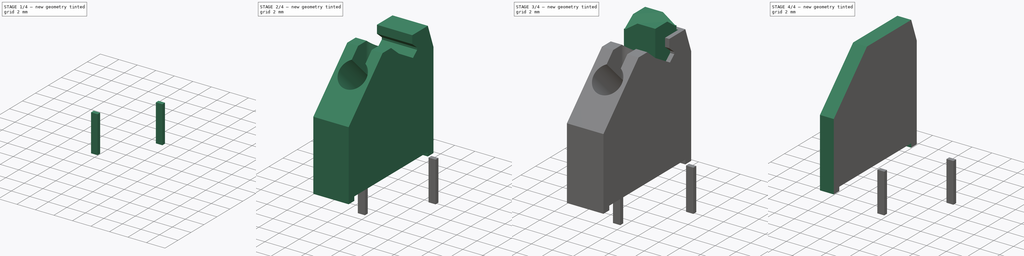
[diagram: build sequence overview — one tinted view per stage of 4, left to right]
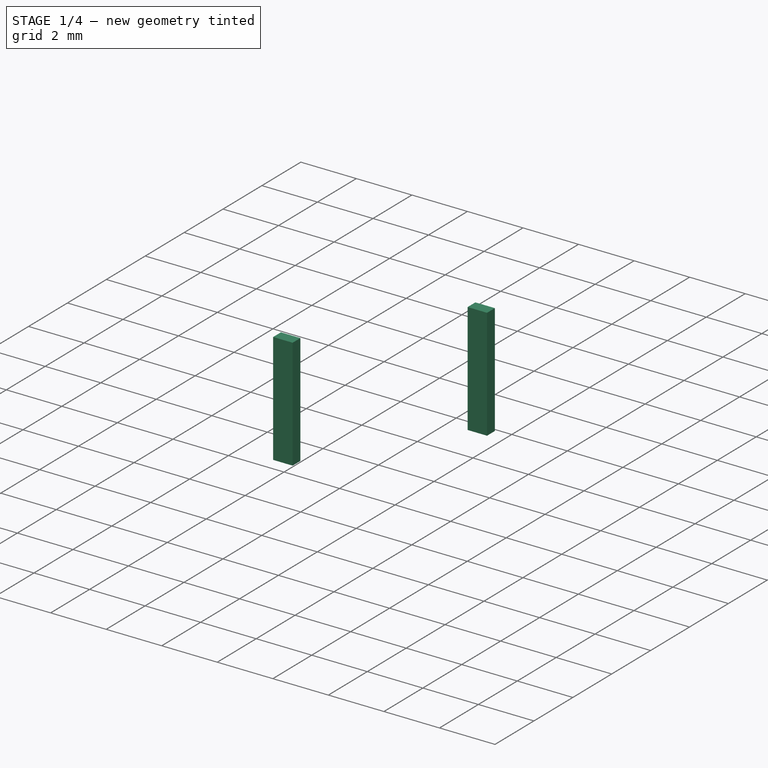
[diagram: stage 1 of 4 — iso view after this stage's code; geometry added in this stage tinted green]
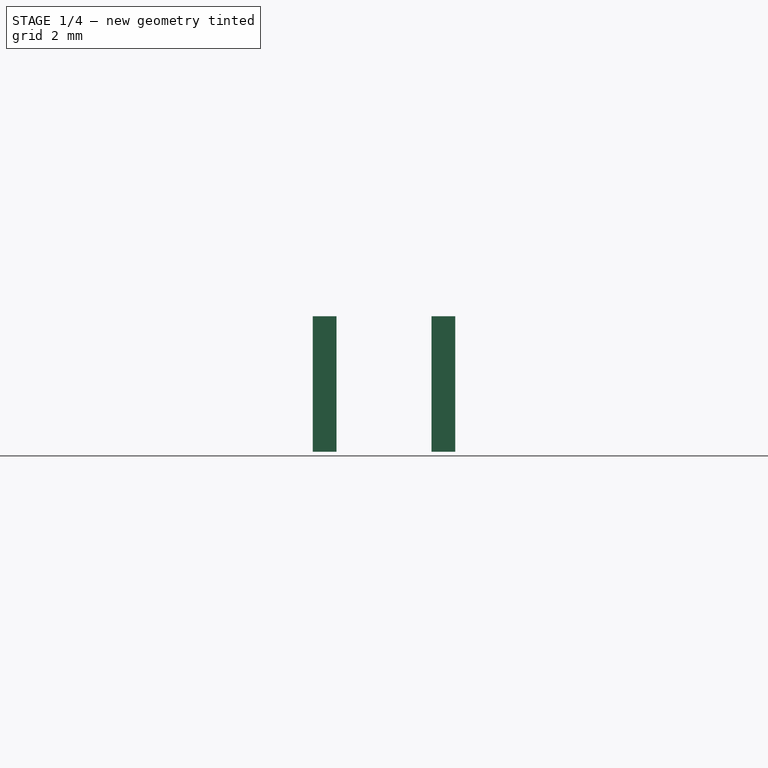
[diagram: stage 1 of 4 — front view after this stage's code; geometry added in this stage tinted green]
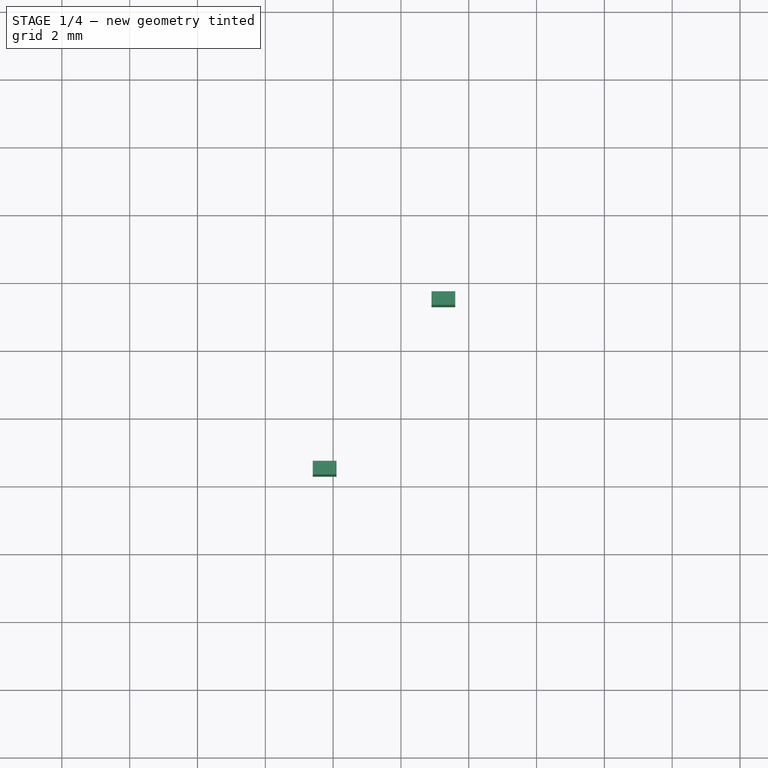
[diagram: stage 1 of 4 — top view after this stage's code; geometry added in this stage tinted green]
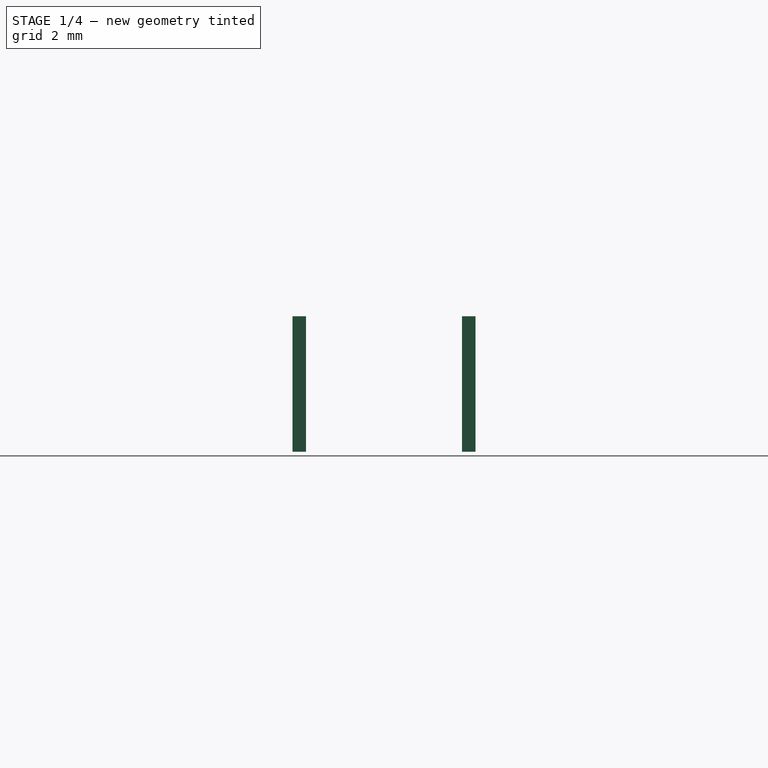
[diagram: stage 1 of 4 — right view after this stage's code; geometry added in this stage tinted green]
FCSTD DOCUMENT  (FreeCAD 1.0R39109 (Git))
Label: HIWA 250-21-2G
License: All rights reserved
LicenseURL: http://en.wikipedia.org/wiki/All_rights_reserved
objects: Sketcher::SketchObject×10, PartDesign::Pad×5, PartDesign::Pocket×4, PartDesign::Body×3, PartDesign::SubShapeBinder×1, Spreadsheet::Sheet×1, PartDesign::LinearPattern×1
note: 53 computed .brp shape members not serialized (recipe doc carries the construction recipe); baked Part::Feature solids carry a one-line shape summary decoded from their .brp

FEATURE [PartDesign::Body] Body  label="main_part"
  AllowCompound = false
  Group = -> [Sketch,Pad,Sketch001,Pocket,Sketch002,Pocket001,Sketch003,Pocket002,Sketch004,Pad001,Sketch005,Sketch006,Pocket003,LinearPattern]
  Origin = -> Origin
  Tip = -> LinearPattern
FEATURE [Sketcher::SketchObject] Sketch008
  ArcFitTolerance = 1e-06
  AttachmentSupport = -> [XY_Plane002]
  FullyConstrained = true
  MakeInternals = false
  MapMode = 5
  expr: Constraints[12] = 3.5 / 2
  sketch-geometry (5):
    g0: LineSegment StartX=1.4 StartY=4.3 StartZ=0 EndX=2.1 EndY=4.3 EndZ=0
    g1: LineSegment StartX=2.1 StartY=4.3 StartZ=0 EndX=2.1 EndY=4.7 EndZ=0
    g2: LineSegment StartX=2.1 StartY=4.7 StartZ=0 EndX=1.4 EndY=4.7 EndZ=0
    g3: LineSegment StartX=1.4 StartY=4.7 StartZ=0 EndX=1.4 EndY=4.3 EndZ=0
    g4: GeomPoint X=1.75 Y=4.3 Z=0
  constraints (13):
    c: Coincident(g0,g1)
    c: Coincident(g1,g2)
    c: Coincident(g2,g3)
    c: Coincident(g3,g0)
    c: Horizontal(g0)
    c: Horizontal(g2)
    c: Vertical(g1)
    c: Vertical(g3)
    c: DistanceX(g0,g0) = 0.7
    c: DistanceY(g1,g1) = 0.4
    c: DistanceY(g-1,g0) = 4.3
    c: Symmetric(g0,g0,g4)
    c: DistanceX(g-1,g4) = 1.75
FEATURE [Sketcher::SketchObject] Sketch009
  ArcFitTolerance = 1e-06
  AttachmentSupport = -> [XY_Plane002]
  ExternalGeometry = -> [Sketch008]
  FullyConstrained = true
  MakeInternals = false
  MapMode = 5
  expr: Constraints[11] = 3.5 + 3.5 / 2
  sketch-geometry (5):
    g0: LineSegment StartX=4.9 StartY=9.7 StartZ=0 EndX=5.6 EndY=9.7 EndZ=0
    g1: LineSegment StartX=5.6 StartY=9.7 StartZ=0 EndX=5.6 EndY=9.3 EndZ=0
    g2: LineSegment StartX=5.6 StartY=9.3 StartZ=0 EndX=4.9 EndY=9.3 EndZ=0
    g3: LineSegment StartX=4.9 StartY=9.3 StartZ=0 EndX=4.9 EndY=9.7 EndZ=0
    g4: GeomPoint X=5.25 Y=9.3 Z=0
  constraints (13):
    c: Coincident(g0,g1)
    c: Coincident(g1,g2)
    c: Coincident(g2,g3)
    c: Coincident(g3,g0)
    c: Horizontal(g0)
    c: Horizontal(g2)
    c: Vertical(g1)
    c: Vertical(g3)
    c: Distance(g1,g3) = 0.7
    c: Distance(g0,g2) = 0.4
    c: Symmetric(g2,g2,g4)
    c: DistanceX(g-1,g4) = 5.25
    c: DistanceY(g-3,g1) = 5
FEATURE [PartDesign::Pad] Pad003
  Direction = (0,0,1)
  Length = 1
  Length2 = 3
  Profile = -> Sketch008
  ReferenceAxis = -> Sketch008 [N_Axis]
  Refine = true
  Suppressed = false
  Type = 4
FEATURE [PartDesign::Pad] Pad004
  BaseFeature = -> Pad003
  Direction = (0,0,1)
  Length = 1
  Length2 = 3
  Profile = -> Sketch009
  ReferenceAxis = -> Sketch009 [N_Axis]
  Refine = true
  Suppressed = false
  Type = 4
FEATURE [PartDesign::Body] Body002  label="pins"
  AllowCompound = true
  Group = -> [Sketch008,Sketch009,Pad003,Pad004]
  Origin = -> Origin002
  Tip = -> Pad004
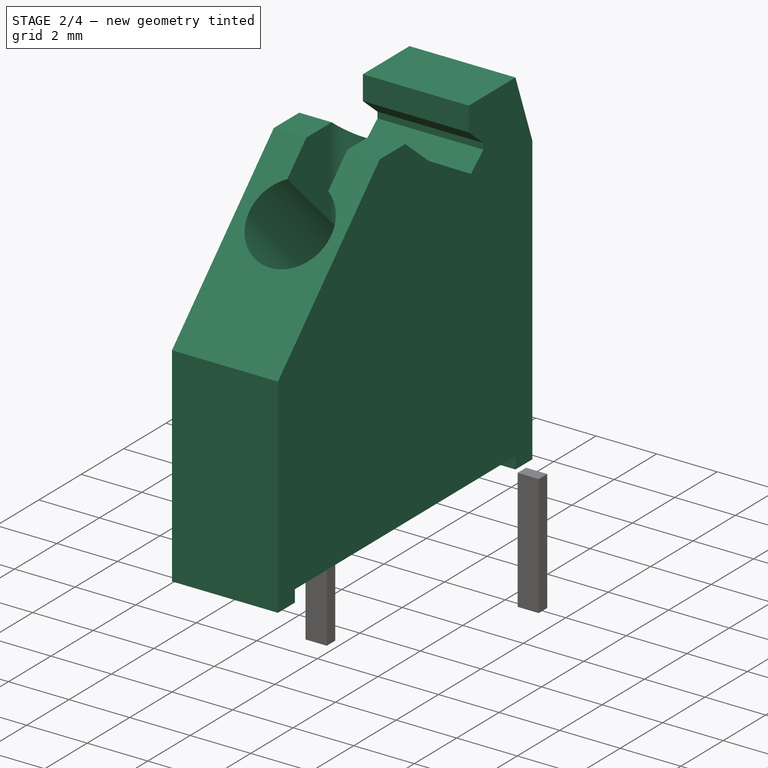
[diagram: stage 2 of 4 — iso view after this stage's code; geometry added in this stage tinted green]
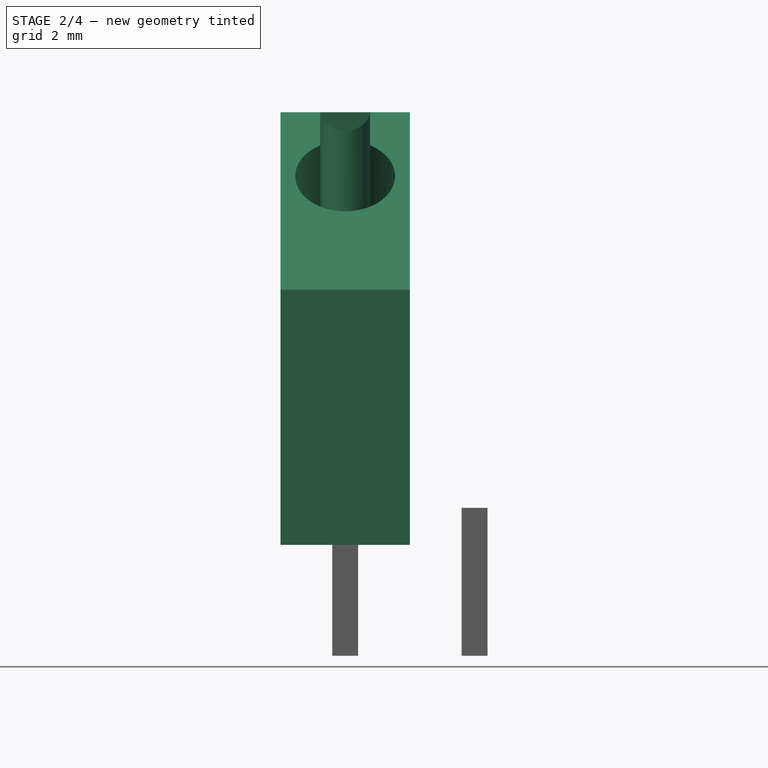
[diagram: stage 2 of 4 — front view after this stage's code; geometry added in this stage tinted green]
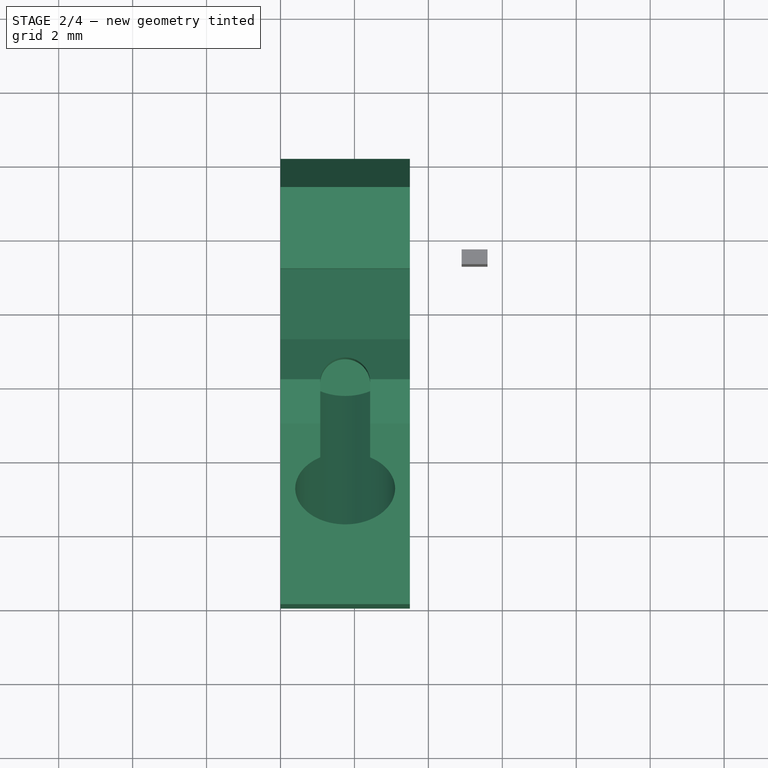
[diagram: stage 2 of 4 — top view after this stage's code; geometry added in this stage tinted green]
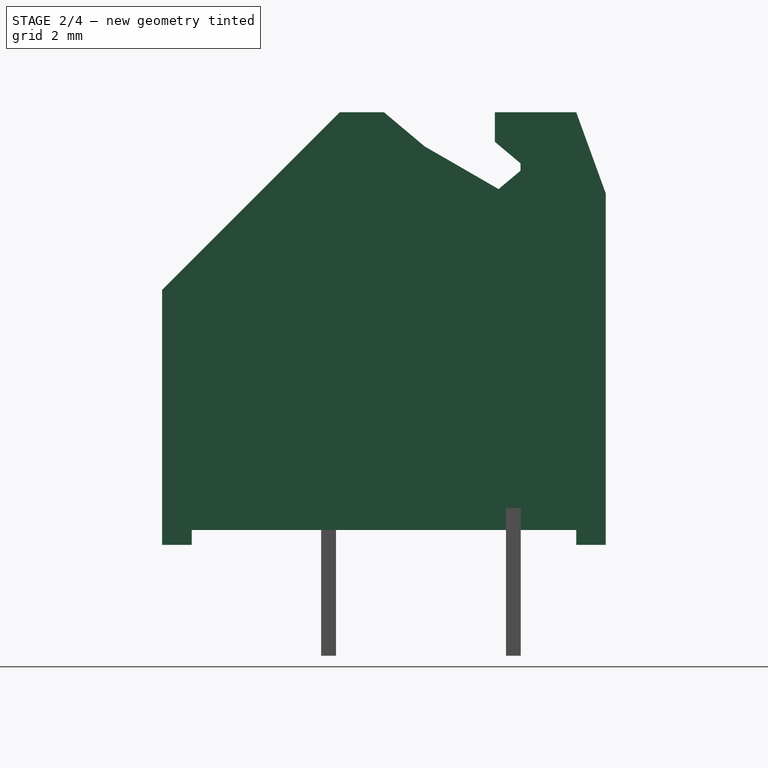
[diagram: stage 2 of 4 — right view after this stage's code; geometry added in this stage tinted green]
FEATURE [Sketcher::SketchObject] Sketch
  ArcFitTolerance = 1e-06
  AttachmentSupport = -> [YZ_Plane]
  FullyConstrained = true
  MakeInternals = false
  MapMode = 5
  Placement = pos=(0,0,0) rot=(0.57735,0.57735,0.57735;2.0944rad)
  sketch-geometry (21):
    g0: LineSegment [constr] StartX=0 StartY=0 StartZ=0 EndX=12 EndY=0 EndZ=0
    g1: LineSegment [constr] StartX=0 StartY=0 StartZ=0 EndX=0 EndY=13.1 EndZ=0
    g2: LineSegment [constr] StartX=0 StartY=13.1 StartZ=0 EndX=12 EndY=13.1 EndZ=0
    g3: LineSegment [constr] StartX=12 StartY=13.1 StartZ=0 EndX=12 EndY=0 EndZ=0
    g4: LineSegment StartX=0 StartY=0 StartZ=0 EndX=0.8 EndY=0 EndZ=0
    g5: LineSegment StartX=12 StartY=0 StartZ=0 EndX=11.2 EndY=0 EndZ=0
    g6: LineSegment StartX=0.8 StartY=0 StartZ=0 EndX=0.8 EndY=0.4 EndZ=0
    g7: LineSegment StartX=0.8 StartY=0.4 StartZ=0 EndX=11.2 EndY=0.4 EndZ=0
    g8: LineSegment StartX=11.2 StartY=0 StartZ=0 EndX=11.2 EndY=0.4 EndZ=0
    g9: LineSegment StartX=0 StartY=0 StartZ=0 EndX=0 EndY=6.9 EndZ=0
    g10: LineSegment StartX=0 StartY=6.9 StartZ=0 EndX=4.8 EndY=11.7 EndZ=0
    g11: LineSegment StartX=4.8 StartY=11.7 StartZ=0 EndX=6 EndY=11.7 EndZ=0
    g12: LineSegment StartX=9 StartY=11.7 StartZ=0 EndX=11.2 EndY=11.7 EndZ=0
    g13: LineSegment StartX=12 StartY=0 StartZ=0 EndX=12 EndY=9.5 EndZ=0
    g14: LineSegment StartX=11.2 StartY=11.7 StartZ=0 EndX=12 EndY=9.5 EndZ=0
    g15: LineSegment StartX=9 StartY=11.7 StartZ=0 EndX=9 EndY=10.9 EndZ=0
    g16: LineSegment StartX=9 StartY=10.9 StartZ=0 EndX=9.69218 EndY=10.3192 EndZ=0
    g17: LineSegment StartX=9.69218 StartY=10.3192 StartZ=0 EndX=9.69218 EndY=10.1192 EndZ=0
    g18: LineSegment StartX=9.69218 StartY=10.1192 StartZ=0 EndX=9.1 EndY=9.62229 EndZ=0
    g19: LineSegment StartX=6 StartY=11.7 StartZ=0 EndX=7.1 EndY=10.777 EndZ=0
    g20: LineSegment StartX=7.1 StartY=10.777 StartZ=0 EndX=9.1 EndY=9.62229 EndZ=0
  constraints (60):
    c: Distance(g0) = 12
    c: Horizontal(g0)
    c: Coincident(g1,g0)
    c: Vertical(g1)
    c: DistanceY(g1,g1) = 13.1
    c: Coincident(g2,g1)
    c: Horizontal(g2)
    c: Coincident(g3,g2)
    c: Coincident(g3,g0)
    c: Vertical(g3)
    c: Coincident(g0,g-1)
    c: Distance(g4) = 0.8
    c: Coincident(g4,g0)
    c: PointOnObject(g4,g0)
    c: Distance(g5) = 0.8
    c: Coincident(g5,g0)
    c: PointOnObject(g5,g0)
    c: Coincident(g6,g4)
    c: Vertical(g6)
    c: DistanceY(g6,g6) = 0.4
    c: Coincident(g7,g6)
    c: Horizontal(g7)
    c: Coincident(g8,g5)
    c: Coincident(g8,g7)
    c: Vertical(g8)
    c: Coincident(g9,g0)
    c: PointOnObject(g9,g1)
    c: Coincident(g10,g9)
    c: Angle(g9,g10) = 2.35619
    c: DistanceY(g9,g9) = 6.9
    c: DistanceY(g10,g1) = 1.4
    c: Distance(g11) = 1.2
    c: Coincident(g11,g10)
    c: Horizontal(g11)
    c: Distance(g12) = 2.2
    c: Horizontal(g12)
    c: Coincident(g13,g0)
    c: PointOnObject(g13,g3)
    c: DistanceY(g13,g13) = 9.5
    c: Coincident(g14,g12)
    c: Coincident(g14,g13)
    c: Horizontal(g11,g12)
    c: DistanceX(g12,g2) = 0.8
    c: Distance(g15) = 0.8
    c: Coincident(g15,g12)
    c: Vertical(g15)
    c: Coincident(g16,g15)
    c: Coincident(g17,g16)
    c: Vertical(g17)
    c: Coincident(g18,g17)
    c: Angle(g16,g18) = 1.39626
    c: DistanceY(g17,g17) = 0.2
    c: Coincident(g19,g11)
    c: Coincident(g20,g19)
    c: Coincident(g20,g18)
    c: Angle(g11,g19) = 2.44346
    c: Angle(g20,g19) = 2.96706
    c: DistanceX(g11,g19) = 1.1
    c: DistanceX(g15,g18) = 0.1
    c: Angle(g16,g17) = 2.26893
FEATURE [PartDesign::Pad] Pad
  Direction = (1,0,0)
  Length = 3.5
  Length2 = 10
  Placement = pos=(0,0,0) rot=(1,1,1;2.0944rad)
  Profile = -> Sketch
  ReferenceAxis = -> Sketch [N_Axis]
  Refine = true
  Suppressed = false
  Type = 0
FEATURE [Sketcher::SketchObject] Sketch001
  ArcFitTolerance = 1e-06
  AttachmentSupport = -> [Pad]
  ExternalGeometry = -> [Pad]
  FullyConstrained = true
  MakeInternals = false
  MapMode = 5
  Placement = pos=(-1.1e-15,-3.45,3.45) rot=(0.357407,0.357407,-0.862856;1.71777rad)
  sketch-geometry (4):
    g0: Circle CenterX=-9.22904 CenterY=1.75 CenterZ=0 NormalX=0 NormalY=0 NormalZ=1 AngleXU=0 Radius=1.35
    g1: GeomPoint X=-11.6673 Y=1.75 Z=0
    g2: GeomPoint X=-9.22904 Y=3.1 Z=0
    g3: GeomPoint X=-7.87904 Y=1.75 Z=0
  constraints (8):
    c: Symmetric(g-3,g-3,g1)
    c: Horizontal(g0,g1)
    c: PointOnObject(g2,g0)
    c: Vertical(g0,g2)
    c: DistanceY(g2,g-4) = 0.4
    c: PointOnObject(g3,g0)
    c: Horizontal(g3,g0)
    c: DistanceX(g3,g-4) = 3
FEATURE [PartDesign::Pocket] Pocket
  BaseFeature = -> Pad
  Direction = (1e-16,0.707107,-0.707107)
  Length = 5
  Length2 = 5
  Placement = pos=(0,0,0) rot=(1,1,1;2.0944rad)
  Profile = -> Sketch001
  ReferenceAxis = -> Sketch001 [N_Axis]
  Refine = true
  Suppressed = false
  Type = 0
FEATURE [Sketcher::SketchObject] Sketch002
  ArcFitTolerance = 1e-06
  AttachmentSupport = -> [Pocket]
  ExternalGeometry = -> [Pocket]
  FullyConstrained = true
  MakeInternals = false
  MapMode = 5
  Placement = pos=(-5.2e-15,5.2e-15,11.7) rot=(0,0,-1;1.5708rad)
  sketch-geometry (5):
    g0: ArcOfCircle CenterX=-5.925 CenterY=1.75 CenterZ=0 NormalX=0 NormalY=0 NormalZ=1 AngleXU=0 Radius=0.675 StartAngle=1.5708 EndAngle=4.71239
    g1: ArcOfCircle CenterX=-3.725 CenterY=1.75 CenterZ=0 NormalX=0 NormalY=0 NormalZ=1 AngleXU=0 Radius=0.675 StartAngle=4.71239 EndAngle=7.85398
    g2: LineSegment StartX=-5.925 StartY=2.425 StartZ=0 EndX=-3.725 EndY=2.425 EndZ=0
    g3: LineSegment StartX=-5.925 StartY=1.075 StartZ=0 EndX=-3.725 EndY=1.075 EndZ=0
    g4: GeomPoint X=-6 Y=1.75 Z=0
  constraints (11):
    c: Tangent(g0,g2) = 1.5708
    c: Tangent(g0,g3) = -1.5708
    c: Tangent(g1,g2) = 1.5708
    c: Tangent(g1,g3) = -1.5708
    c: Equal(g0,g1)
    c: Horizontal(g3)
    c: DistanceY(g1,g1) = 1.35
    c: Distance(g0,g-5) = 5.4
    c: DistanceX(g0,g1) = 2.2
    c: Symmetric(g-3,g-3,g4)
    c: Horizontal(g0,g4)
FEATURE [PartDesign::Pocket] Pocket001
  BaseFeature = -> Pocket
  Direction = (0,0,-1)
  Length = 3.5
  Length2 = 5
  Placement = pos=(0,0,0) rot=(1,1,1;2.0944rad)
  Profile = -> Sketch002
  ReferenceAxis = -> Sketch002 [N_Axis]
  Refine = true
  Suppressed = false
  Type = 0
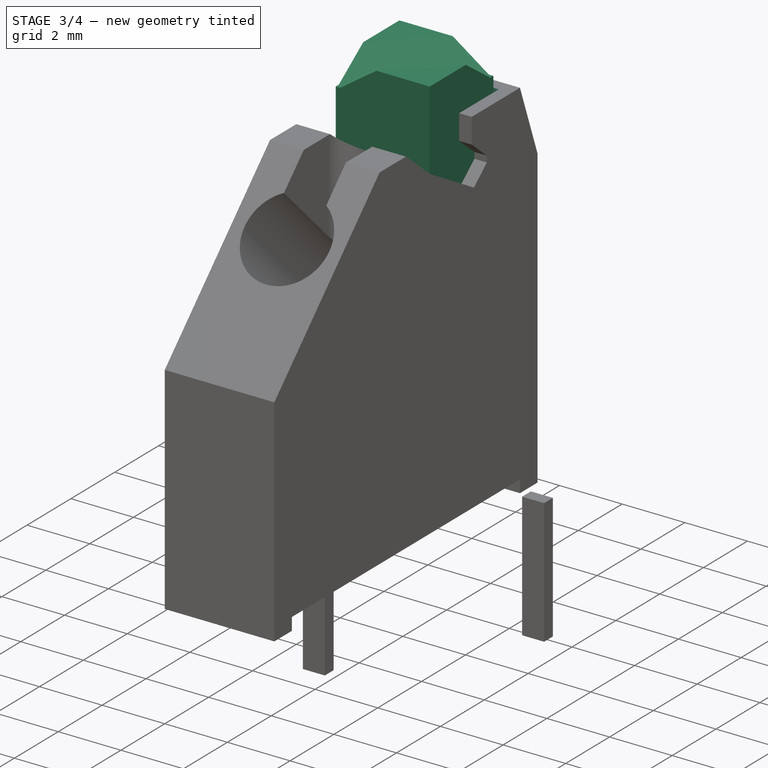
[diagram: stage 3 of 4 — iso view after this stage's code; geometry added in this stage tinted green]
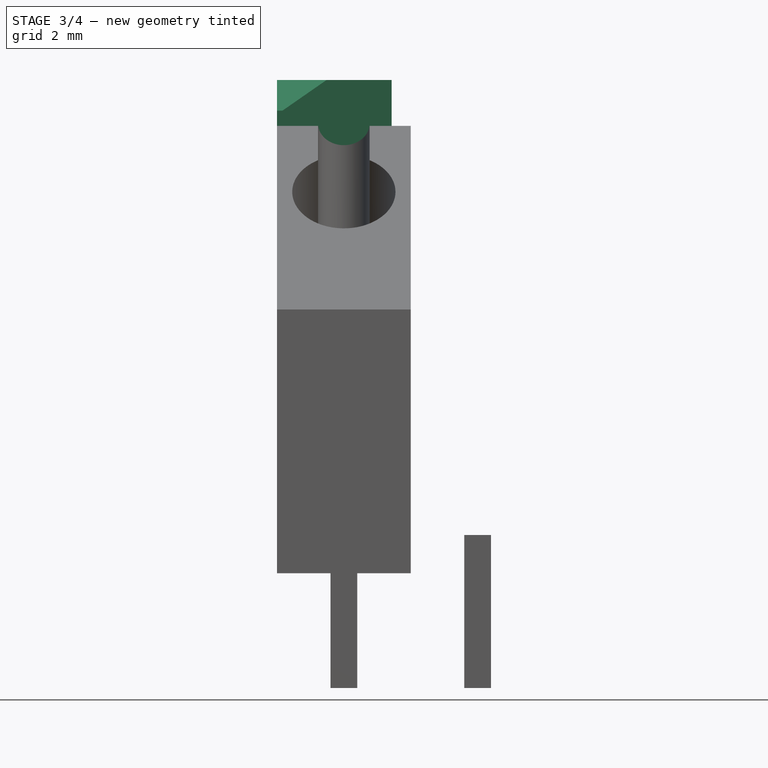
[diagram: stage 3 of 4 — front view after this stage's code; geometry added in this stage tinted green]
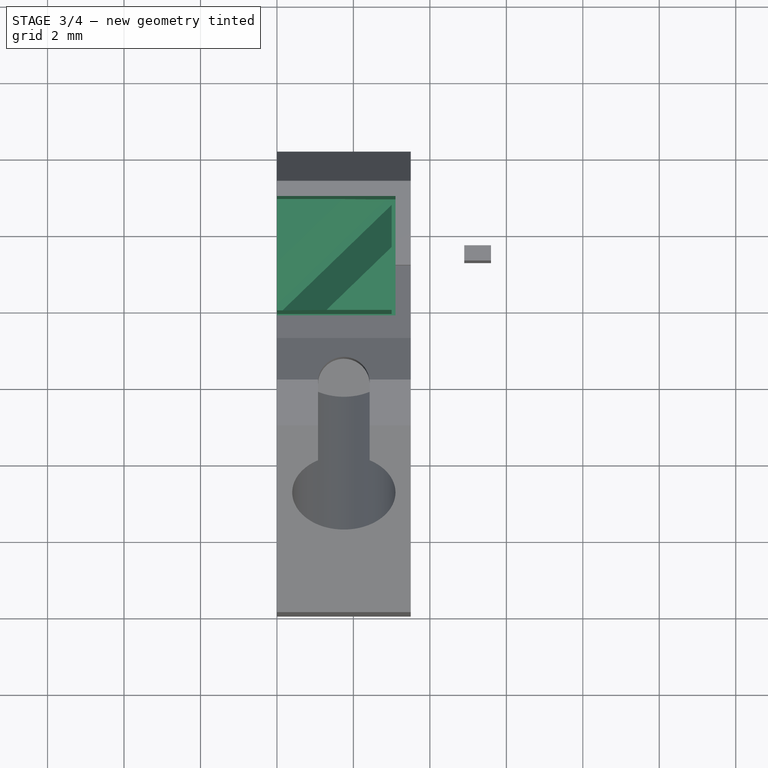
[diagram: stage 3 of 4 — top view after this stage's code; geometry added in this stage tinted green]
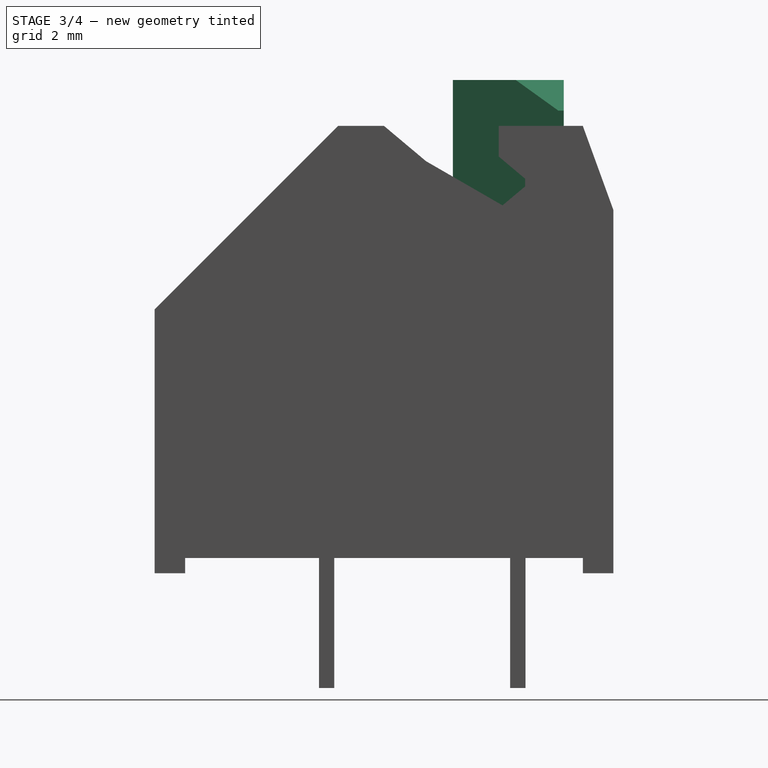
[diagram: stage 3 of 4 — right view after this stage's code; geometry added in this stage tinted green]
FEATURE [Sketcher::SketchObject] Sketch003
  ArcFitTolerance = 1e-06
  AttachmentSupport = -> [Pocket001]
  ExternalGeometry = -> [Pocket001]
  FullyConstrained = true
  MakeInternals = false
  MapMode = 5
  Placement = pos=(-9.1e-15,6.5e-15,11.7) rot=(0,0,-1;1.5708rad)
  sketch-geometry (4):
    g0: LineSegment StartX=-10.8 StartY=3.1 StartZ=0 EndX=-10.8 EndY=0 EndZ=0
    g1: LineSegment StartX=-10.8 StartY=0 StartZ=0 EndX=-7.7 EndY=0 EndZ=0
    g2: LineSegment StartX=-7.7 StartY=0 StartZ=0 EndX=-7.7 EndY=3.1 EndZ=0
    g3: LineSegment StartX=-7.7 StartY=3.1 StartZ=0 EndX=-10.8 EndY=3.1 EndZ=0
  constraints (12):
    c: Coincident(g0,g1)
    c: Coincident(g1,g2)
    c: Coincident(g2,g3)
    c: Coincident(g3,g0)
    c: Vertical(g0)
    c: Vertical(g2)
    c: Horizontal(g1)
    c: Horizontal(g3)
    c: Equal(g0,g3)
    c: DistanceY(g0,g-4) = 0.4
    c: DistanceX(g-4,g0) = 0.4
    c: Horizontal(g-3,g0)
FEATURE [PartDesign::Pocket] Pocket002
  BaseFeature = -> Pocket001
  Direction = (0,0,-1)
  Length = 5
  Length2 = 5
  Placement = pos=(0,0,0) rot=(1,1,1;2.0944rad)
  Profile = -> Sketch003
  ReferenceAxis = -> Sketch003 [N_Axis]
  Refine = true
  Suppressed = false
  Type = 0
FEATURE [Sketcher::SketchObject] Sketch004
  ArcFitTolerance = 1e-06
  AttachmentSupport = -> [Pocket002]
  ExternalGeometry = -> [Pocket002]
  FullyConstrained = true
  MakeInternals = false
  MapMode = 5
  Placement = pos=(-2.2e-15,7e-16,6.7) rot=(0,0,-1;1.5708rad)
  sketch-geometry (4):
    g0: LineSegment StartX=-10.7 StartY=3 StartZ=0 EndX=-10.7 EndY=0 EndZ=0
    g1: LineSegment StartX=-10.7 StartY=0 StartZ=0 EndX=-7.8 EndY=0 EndZ=0
    g2: LineSegment StartX=-7.8 StartY=0 StartZ=0 EndX=-7.8 EndY=3 EndZ=0
    g3: LineSegment StartX=-7.8 StartY=3 StartZ=0 EndX=-10.7 EndY=3 EndZ=0
  constraints (12):
    c: Coincident(g0,g1)
    c: Coincident(g1,g2)
    c: Coincident(g2,g3)
    c: Coincident(g3,g0)
    c: Vertical(g0)
    c: Vertical(g2)
    c: Horizontal(g1)
    c: Horizontal(g3)
    c: PointOnObject(g1,g-1)
    c: DistanceX(g-4,g0) = 0.1
    c: DistanceX(g2,g-4) = 0.1
    c: DistanceY(g2,g-4) = 0.1
FEATURE [PartDesign::Pad] Pad001
  BaseFeature = -> Pocket002
  Direction = (0,0,1)
  Length = 6.2
  Length2 = 10
  Placement = pos=(0,0,0) rot=(1,1,1;2.0944rad)
  Profile = -> Sketch004
  ReferenceAxis = -> Sketch004 [N_Axis]
  Refine = true
  Suppressed = false
  Type = 0
FEATURE [Sketcher::SketchObject] Sketch005
  ArcFitTolerance = 1e-06
  AttachmentSupport = -> [Pad001]
  FullyConstrained = true
  MakeInternals = false
  MapMode = 5
  Placement = pos=(-4.3e-15,1.4e-15,12.9) rot=(0,0,-1;1.5708rad)
FEATURE [Sketcher::SketchObject] Sketch006
  ArcFitTolerance = 1e-06
  AttachmentSupport = -> [Pad001]
  ExternalGeometry = -> [Pad001]
  FullyConstrained = false
  MakeInternals = false
  MapMode = 5
  Placement = pos=(-4.3e-15,1.4e-15,12.9) rot=(0,0,-1;1.5708rad)
  sketch-geometry (4):
    g0: ArcOfCircle CenterX=-7.8 CenterY=-2.2e-15 CenterZ=0 NormalX=0 NormalY=0 NormalZ=1 AngleXU=0 Radius=0.900523 StartAngle=3.91004 EndAngle=7.05164
    g1: ArcOfCircle CenterX=-10.7 CenterY=3 CenterZ=0 NormalX=0 NormalY=0 NormalZ=1 AngleXU=0 Radius=0.900523 StartAngle=0.768451 EndAngle=3.91004
    g2: LineSegment StartX=-8.44747 StartY=-0.625883 StartZ=0 EndX=-11.3475 EndY=2.37412 EndZ=0
    g3: LineSegment StartX=-7.15253 StartY=0.625883 StartZ=0 EndX=-10.0525 EndY=3.62588 EndZ=0
  constraints (7):
    c: Tangent(g0,g2) = 1.5708
    c: Tangent(g0,g3) = -1.5708
    c: Tangent(g1,g2) = 1.5708
    c: Tangent(g1,g3) = -1.5708
    c: Equal(g0,g1)
    c: Coincident(g0,g-3)
    c: Coincident(g1,g-4)
FEATURE [PartDesign::Pocket] Pocket003
  BaseFeature = -> Pad001
  Direction = (0,0,-1)
  Length = 0.8
  Length2 = 5
  Placement = pos=(0,0,0) rot=(1,1,1;2.0944rad)
  Profile = -> Sketch006
  ReferenceAxis = -> Sketch006 [N_Axis]
  Refine = true
  Suppressed = false
  TaperAngle = -45
  Type = 0
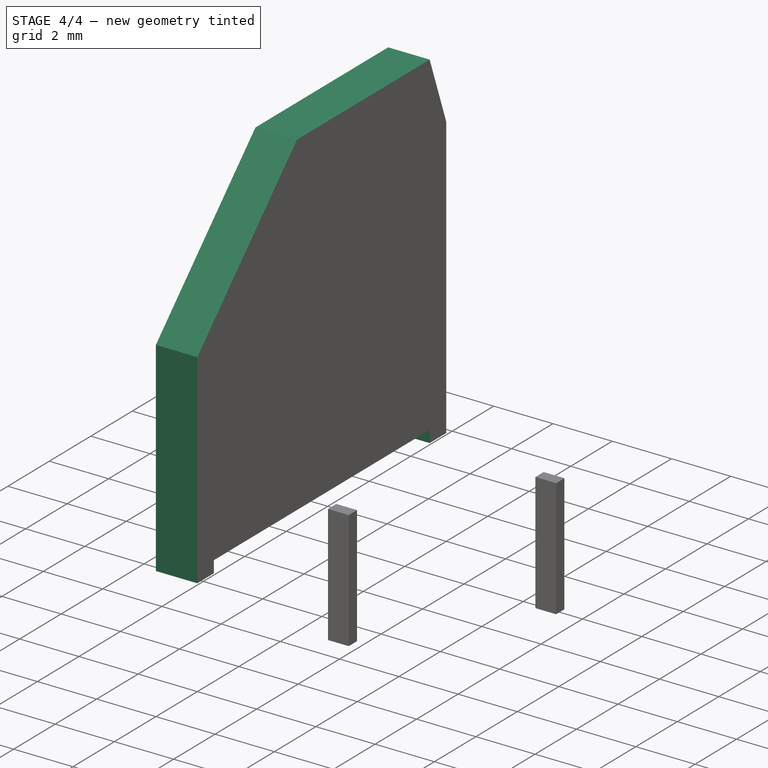
[diagram: stage 4 of 4 — iso view after this stage's code; geometry added in this stage tinted green]
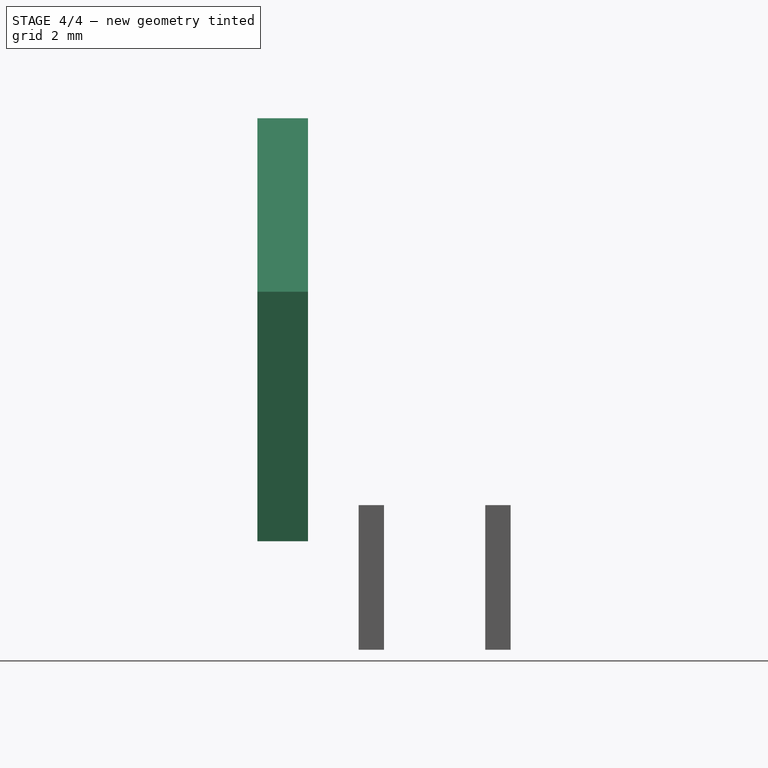
[diagram: stage 4 of 4 — front view after this stage's code; geometry added in this stage tinted green]
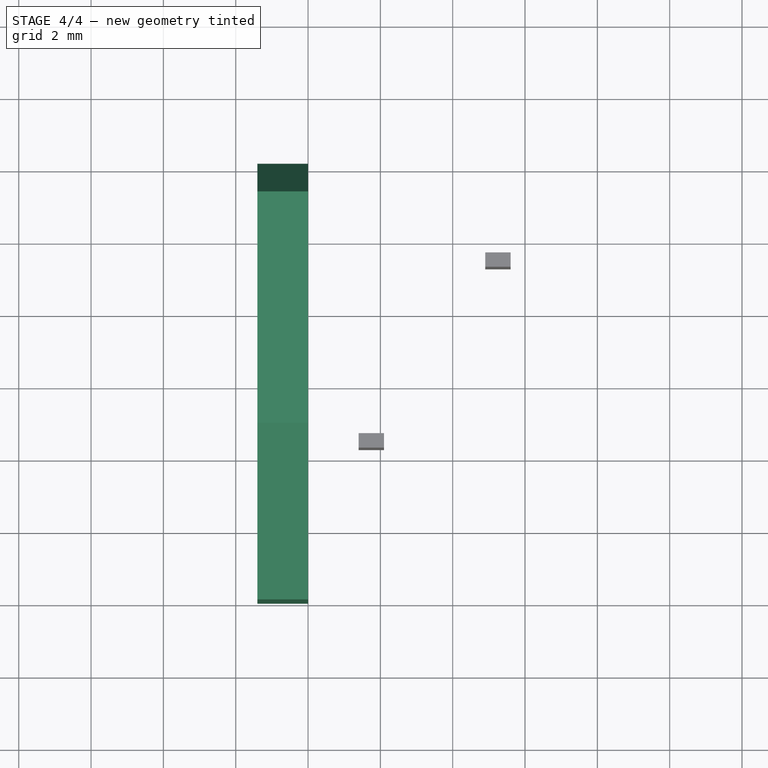
[diagram: stage 4 of 4 — top view after this stage's code; geometry added in this stage tinted green]
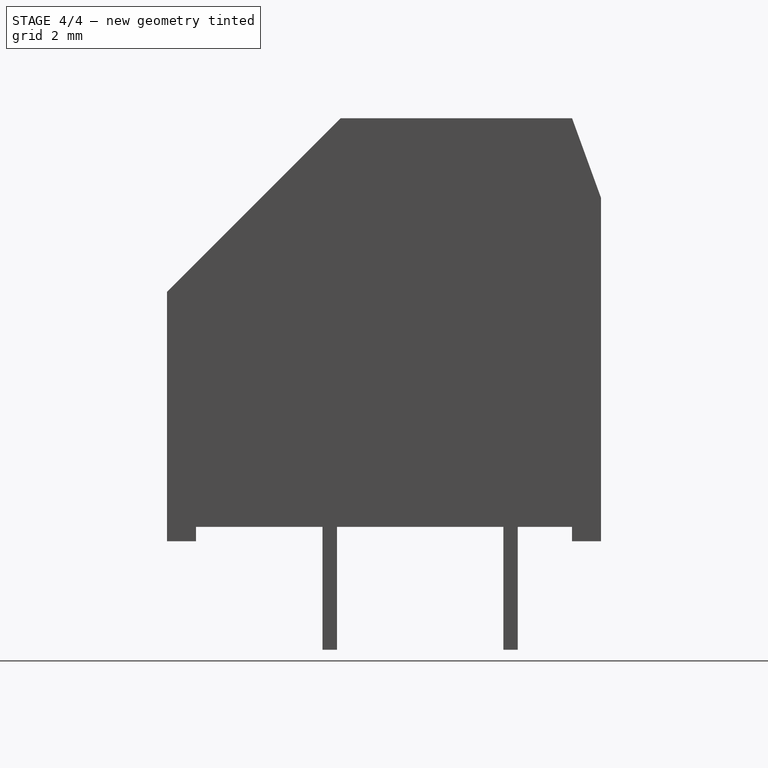
[diagram: stage 4 of 4 — right view after this stage's code; geometry added in this stage tinted green]
FEATURE [PartDesign::SubShapeBinder] Binder
  BindCopyOnChange = 0
  BindMode = 0
  ClaimChildren = false
  Context = -> Body001 [Binder.]
  Fuse = false
  MakeFace = true
  OffsetFill = false
  OffsetIntersection = false
  OffsetJoinType = 0
  OffsetOpenResult = false
  PartialLoad = false
  Refine = true
  Relative = true
  Support = -> [Body[Sketch.]]
  _Version = 2
FEATURE [Sketcher::SketchObject] Sketch007
  ArcFitTolerance = 1e-06
  AttachmentSupport = -> [YZ_Plane001]
  ExternalGeometry = -> [Binder]
  FullyConstrained = true
  MakeInternals = false
  MapMode = 5
  Placement = pos=(0,0,0) rot=(0.57735,0.57735,0.57735;2.0944rad)
  sketch-geometry (10):
    g0: LineSegment StartX=11.2 StartY=11.7 StartZ=0 EndX=12 EndY=9.5 EndZ=0
    g1: LineSegment StartX=12 StartY=9.5 StartZ=0 EndX=12 EndY=0 EndZ=0
    g2: LineSegment StartX=12 StartY=0 StartZ=0 EndX=11.2 EndY=0 EndZ=0
    g3: LineSegment StartX=11.2 StartY=0 StartZ=0 EndX=11.2 EndY=0.4 EndZ=0
    g4: LineSegment StartX=11.2 StartY=0.4 StartZ=0 EndX=0.8 EndY=0.4 EndZ=0
    g5: LineSegment StartX=0.8 StartY=0.4 StartZ=0 EndX=0.8 EndY=0 EndZ=0
    g6: LineSegment StartX=0.8 StartY=0 StartZ=0 EndX=0 EndY=0 EndZ=0
    g7: LineSegment StartX=0 StartY=0 StartZ=0 EndX=0 EndY=6.9 EndZ=0
    g8: LineSegment StartX=0 StartY=6.9 StartZ=0 EndX=4.8 EndY=11.7 EndZ=0
    g9: LineSegment StartX=4.8 StartY=11.7 StartZ=0 EndX=11.2 EndY=11.7 EndZ=0
  constraints (22):
    c: Coincident(g0,g-3)
    c: Coincident(g0,g-4)
    c: Coincident(g1,g0)
    c: Coincident(g1,g-4)
    c: Coincident(g2,g1)
    c: PointOnObject(g2,g-1)
    c: Coincident(g3,g2)
    c: Coincident(g3,g-5)
    c: Vertical(g3)
    c: Coincident(g4,g3)
    c: Coincident(g4,g-6)
    c: Coincident(g5,g4)
    c: PointOnObject(g5,g-1)
    c: Vertical(g5)
    c: Coincident(g6,g5)
    c: Coincident(g6,g-1)
    c: Coincident(g7,g6)
    c: Coincident(g7,g-7)
    c: Coincident(g8,g7)
    c: Coincident(g8,g-8)
    c: Coincident(g9,g8)
    c: Coincident(g9,g0)
FEATURE [PartDesign::Pad] Pad002
  Direction = (1,0,0)
  Length = 1.4
  Length2 = 10
  Placement = pos=(0,0,0) rot=(1,1,1;2.0944rad)
  Profile = -> Sketch007
  ReferenceAxis = -> Sketch007 [N_Axis]
  Refine = true
  Reversed = true
  Suppressed = false
  Type = 0
FEATURE [PartDesign::Body] Body001  label="left_wall"
  AllowCompound = false
  Group = -> [Sketch007,Binder,Pad002]
  Origin = -> Origin001
  Tip = -> Pad002
FEATURE [Spreadsheet::Sheet] Spreadsheet  label="vars"
  cells = A1='n; B1(n)=2
FEATURE [PartDesign::LinearPattern] LinearPattern
  BaseFeature = -> Pocket003
  Direction = -> X_Axis
  Length = 3.5
  Mode = 1
  Occurrences = 2
  Offset = 3.5
  Originals = -> [Pocket003]
  Placement = pos=(0,0,0) rot=(1,1,1;2.0944rad)
  Suppressed = false
  TransformMode = 1
  expr: Occurrences = <<vars>>.n
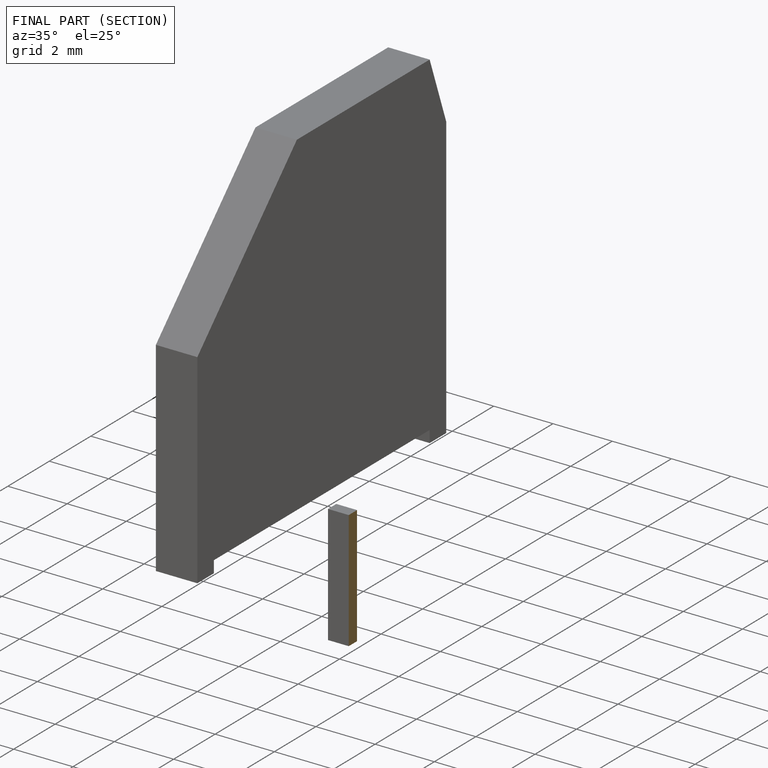
[diagram: finished part — half-section view (interior)]
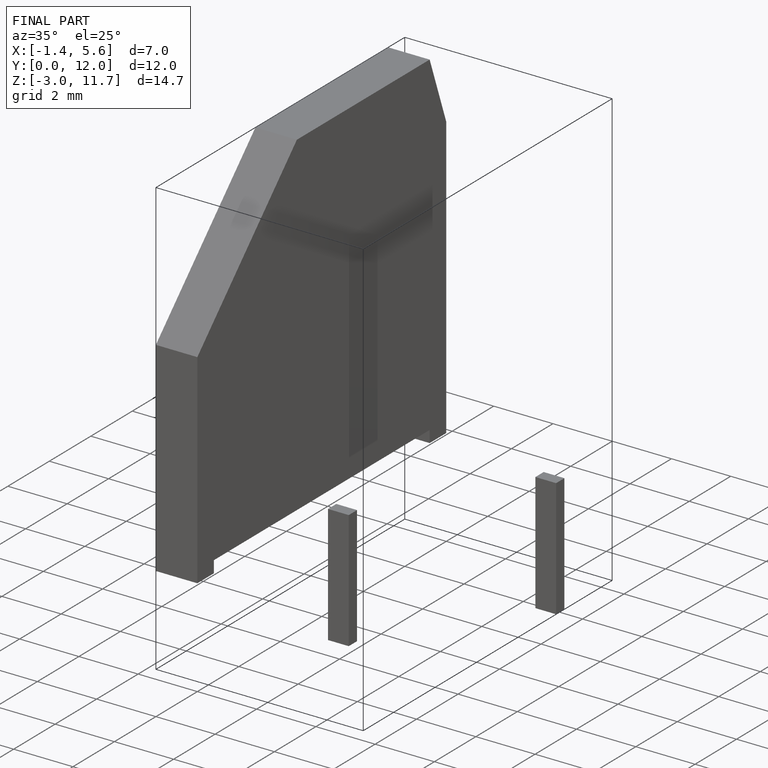
[diagram: finished part — iso view with bounding-box wireframe]
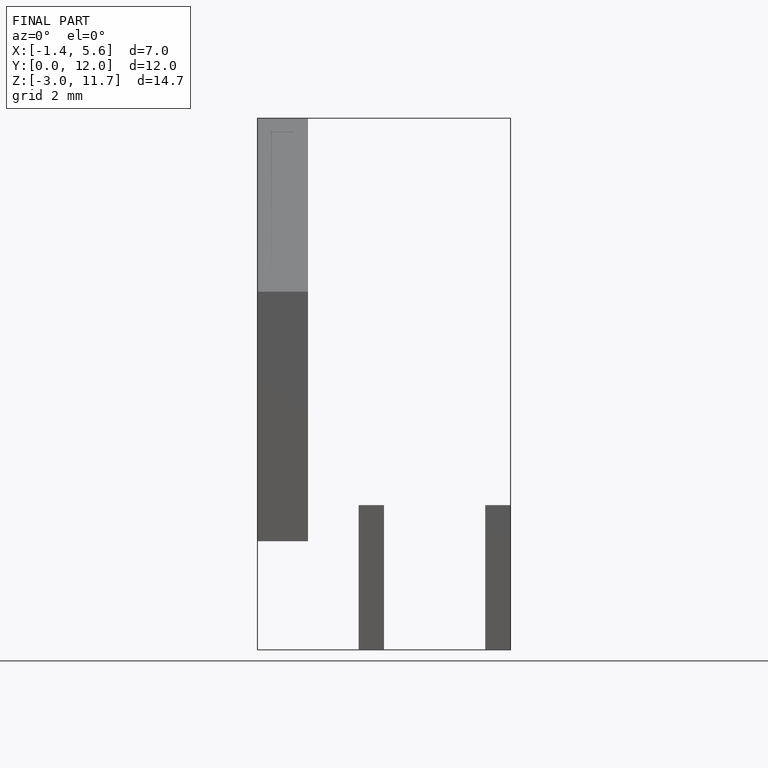
[diagram: finished part — front view with bounding-box wireframe]
